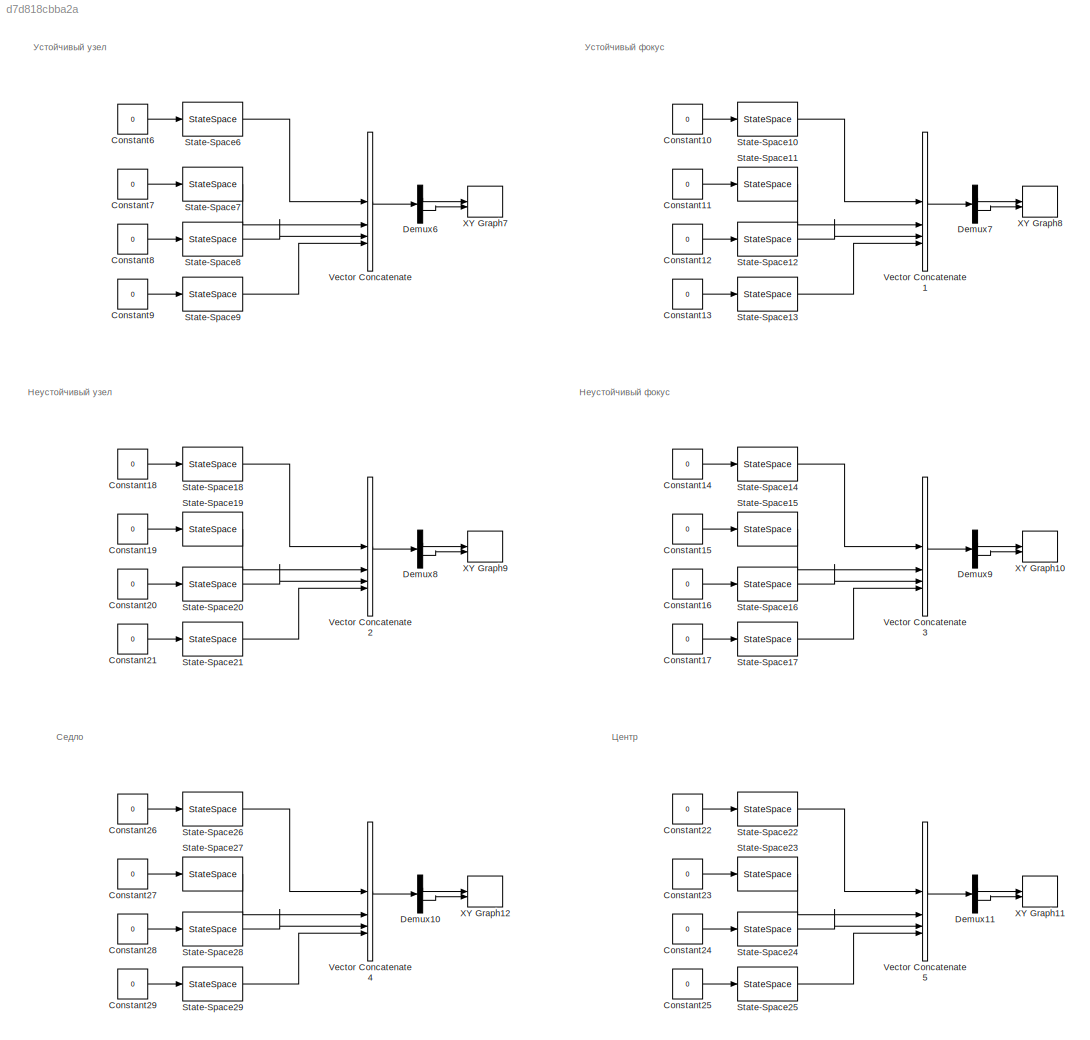
MODEL slx_d7d818cbba2a
KIND model
CONFIG AbsTol = auto
CONFIG EnableMultiTasking = off
CONFIG FixedStep = auto
CONFIG MaxStep = auto
CONFIG MinStep = auto
CONFIG RelTol = 1e-3
CONFIG SampleTimeConstraint = Unconstrained
CONFIG SolverName = VariableStepAuto
CONFIG StartTime = 0.0
CONFIG StopTime = 10.0
BLOCK [Constant] Constant10
  Value = 0
BLOCK [Constant] Constant11
  Value = 0
BLOCK [Constant] Constant12
  Value = 0
BLOCK [Constant] Constant13
  Value = 0
BLOCK [Constant] Constant14
  Value = 0
BLOCK [Constant] Constant15
  Value = 0
BLOCK [Constant] Constant16
  Value = 0
BLOCK [Constant] Constant17
  Value = 0
BLOCK [Constant] Constant18
  Value = 0
BLOCK [Constant] Constant19
  Value = 0
BLOCK [Constant] Constant20
  Value = 0
BLOCK [Constant] Constant21
  Value = 0
BLOCK [Constant] Constant22
  Value = 0
BLOCK [Constant] Constant23
  Value = 0
BLOCK [Constant] Constant24
  Value = 0
BLOCK [Constant] Constant25
  Value = 0
BLOCK [Constant] Constant26
  Value = 0
BLOCK [Constant] Constant27
  Value = 0
BLOCK [Constant] Constant28
  Value = 0
BLOCK [Constant] Constant29
  Value = 0
BLOCK [Constant] Constant6
  Value = 0
BLOCK [Constant] Constant7
  Value = 0
BLOCK [Constant] Constant8
  Value = 0
BLOCK [Constant] Constant9
  Value = 0
BLOCK [Demux] Demux10
  Outputs = 2
BLOCK [Demux] Demux11
  Outputs = 2
BLOCK [Demux] Demux6
  Outputs = 2
BLOCK [Demux] Demux7
  Outputs = 2
BLOCK [Demux] Demux8
  Outputs = 2
BLOCK [Demux] Demux9
  Outputs = 2
BLOCK [StateSpace] State-Space10
  A = [-1 -1; 2 -2]
  B = [0;0]
  C = [1 0; 0 1]
  D = [0;0]
  InitialCondition = [1;1]
BLOCK [StateSpace] State-Space11
  A = [-1 0; 0 -2]
  B = [0;0]
  C = [1 0; 0 1]
  D = [0;0]
  InitialCondition = [-1;1]
BLOCK [StateSpace] State-Space12
  A = [-1 0; 0 -2]
  B = [0;0]
  C = [1 0; 0 1]
  D = [0;0]
  InitialCondition = [3;-3]
BLOCK [StateSpace] State-Space13
  A = [-1 0; 0 -2]
  B = [0;0]
  C = [1 0; 0 1]
  D = [0;0]
  InitialCondition = [-1;-1]
BLOCK [StateSpace] State-Space14
  A = [1 -1; 2 2]
  B = [0;0]
  C = [1 0; 0 1]
  D = [0;0]
  InitialCondition = [1;1]
BLOCK [StateSpace] State-Space15
  A = [1 -1; 2 2]
  B = [0;0]
  C = [1 0; 0 1]
  D = [0;0]
  InitialCondition = [-1;1]
BLOCK [StateSpace] State-Space16
  A = [1 -1; 2 2]
  B = [0;0]
  C = [1 0; 0 1]
  D = [0;0]
  InitialCondition = [3;-3]
BLOCK [StateSpace] State-Space17
  A = [1 -1; 2 2]
  B = [0;0]
  C = [1 0; 0 1]
  D = [0;0]
  InitialCondition = [-1;-1]
BLOCK [StateSpace] State-Space18
  A = [1 0; 0 2]
  B = [0;0]
  C = [1 0; 0 1]
  D = [0;0]
  InitialCondition = [1;1]
BLOCK [StateSpace] State-Space19
  A = [1 0; 0 2]
  B = [0;0]
  C = [1 0; 0 1]
  D = [0;0]
  InitialCondition = [-1;1]
BLOCK [StateSpace] State-Space20
  A = [1 0; 0 2]
  B = [0;0]
  C = [1 0; 0 1]
  D = [0;0]
  InitialCondition = [0.5;-0.5]
BLOCK [StateSpace] State-Space21
  A = [1 0; 0 2]
  B = [0;0]
  C = [1 0; 0 1]
  D = [0;0]
  InitialCondition = [-1;-1]
BLOCK [StateSpace] State-Space22
  A = [0 -1; 1 0]
  B = [0;0]
  C = [1 0; 0 1]
  D = [0;0]
  InitialCondition = [1;1]
BLOCK [StateSpace] State-Space23
  A = [0 -1; 1 0]
  B = [0;0]
  C = [1 0; 0 1]
  D = [0;0]
  InitialCondition = [-1;1]
BLOCK [StateSpace] State-Space24
  A = [0 -1; 1 0]
  B = [0;0]
  C = [1 0; 0 1]
  D = [0;0]
  InitialCondition = [3;-3]
BLOCK [StateSpace] State-Space25
  A = [0 -1; 1 0]
  B = [0;0]
  C = [1 0; 0 1]
  D = [0;0]
  InitialCondition = [-1;-1]
BLOCK [StateSpace] State-Space26
  A = [1 0; 0 -2]
  B = [0;0]
  C = [1 0; 0 1]
  D = [0;0]
  InitialCondition = [1;1]
BLOCK [StateSpace] State-Space27
  A = [1 0; 0 -2]
  B = [0;0]
  C = [1 0; 0 1]
  D = [0;0]
  InitialCondition = [-1;1]
BLOCK [StateSpace] State-Space28
  A = [1 0; 0 -2]
  B = [0;0]
  C = [1 0; 0 1]
  D = [0;0]
  InitialCondition = [3;-3]
BLOCK [StateSpace] State-Space29
  A = [1 0; 0 -2]
  B = [0;0]
  C = [1 0; 0 1]
  D = [0;0]
  InitialCondition = [-1;-1]
BLOCK [StateSpace] State-Space6
  A = [-1 0; 0 -2]
  B = [0;0]
  C = [1 0; 0 1]
  D = [0;0]
  InitialCondition = [1;1]
BLOCK [StateSpace] State-Space7
  A = [-1 0; 0 -2]
  B = [0;0]
  C = [1 0; 0 1]
  D = [0;0]
  InitialCondition = [-1;1]
BLOCK [StateSpace] State-Space8
  A = [-1 0; 0 -2]
  B = [0;0]
  C = [1 0; 0 1]
  D = [0;0]
  InitialCondition = [3;-3]
BLOCK [StateSpace] State-Space9
  A = [-1 0; 0 -2]
  B = [0;0]
  C = [1 0; 0 1]
  D = [0;0]
  InitialCondition = [-1;-1]
BLOCK [Concatenate] Vector Concatenate
  NumInputs = 4
BLOCK [Concatenate] Vector Concatenate1
  NumInputs = 4
BLOCK [Concatenate] Vector Concatenate2
  NumInputs = 4
BLOCK [Concatenate] Vector Concatenate3
  NumInputs = 4
BLOCK [Concatenate] Vector Concatenate4
  NumInputs = 4
BLOCK [Concatenate] Vector Concatenate5
  NumInputs = 4
BLOCK [Record] XY Graph10
  CompatibilityTag = XY
  FileSettingsInternal = {"entries":[{"content":{"excelSettings":{"content":{},"type":"Streamout.ExcelSettings"}},"type":"Streamout.FileSettingStorage","uuid":""}],"packageUris":["http:\/\/schema.mathworks.com\/mf0\/streamout_blocks\/R2020a"],"version":"1.0"}  <repeated x6 — deduplicated; at blocks: XY Graph10, XY Graph11, XY Graph12, XY Graph7, XY Graph8, XY Graph9>
  Layout = [1 1]
  SignalsInternal = {"entries":[{"content":{},"type":"RecordBlkView.InputSignals","uuid":""}],"packageUris":["http:\/\/schema.mathworks.com\/mf0\/streamout_blocks\/R2020a"],"version":"1.0"}
  VisualizationBindings = {"xyplotplugin":{"info":[{"series":[{"bindingParametersList":[{"parameter":"X-Axis","signalID":2387,"signalName":"Demux9:1(1)"},{"parameter":"Y-Axis","signalID":2392,"signalName":"Demux9:2(1)"}],"seriesID":0},{"bindingParametersList":[{"parameter":"X-Axis","signalID":2442,"signalName":"Demux9:1(2)"},{"parameter":"Y-Axis","signalID":2445,"signalName":"Demux9:2(2)"}],"seriesID":1},{"bindingParameter...<+346ch>
BLOCK [Record] XY Graph11
  CompatibilityTag = XY
  Layout = [1 1]
  SignalsInternal = {"entries":[{"content":{},"type":"RecordBlkView.InputSignals","uuid":""}],"packageUris":["http:\/\/schema.mathworks.com\/mf0\/streamout_blocks\/R2020a"],"version":"1.0"}
  VisualizationBindings = {"xyplotplugin":{"info":[{"series":[{"bindingParametersList":[{"parameter":"X-Axis","signalID":2407,"signalName":"Demux11:1(1)"},{"parameter":"Y-Axis","signalID":2412,"signalName":"Demux11:2(1)"}],"seriesID":0},{"bindingParametersList":[{"parameter":"X-Axis","signalID":2454,"signalName":"Demux11:1(2)"},{"parameter":"Y-Axis","signalID":2457,"signalName":"Demux11:2(2)"}],"seriesID":1},{"bindingParam...<+354ch>
BLOCK [Record] XY Graph12
  CompatibilityTag = XY
  Layout = [1 1]
  SignalsInternal = {"entries":[{"content":{},"type":"RecordBlkView.InputSignals","uuid":""}],"packageUris":["http:\/\/schema.mathworks.com\/mf0\/streamout_blocks\/R2020a"],"version":"1.0"}
  VisualizationBindings = {"xyplotplugin":{"info":[{"series":[{"bindingParametersList":[{"parameter":"X-Axis","signalID":2417,"signalName":"Demux10:1(1)"},{"parameter":"Y-Axis","signalID":2422,"signalName":"Demux10:2(1)"}],"seriesID":0},{"bindingParametersList":[{"parameter":"X-Axis","signalID":2460,"signalName":"Demux10:1(2)"},{"parameter":"Y-Axis","signalID":2463,"signalName":"Demux10:2(2)"}],"seriesID":1},{"bindingParam...<+354ch>
BLOCK [Record] XY Graph7
  CompatibilityTag = XY
  Layout = [1 1]
  SignalsInternal = {"entries":[{"content":{},"type":"RecordBlkView.InputSignals","uuid":""}],"packageUris":["http:\/\/schema.mathworks.com\/mf0\/streamout_blocks\/R2020a"],"version":"1.0"}
  VisualizationBindings = {"xyplotplugin":{"info":[{"series":[{"bindingParametersList":[{"parameter":"X-Axis","signalID":2427,"signalName":"Demux6:1(1)"},{"parameter":"Y-Axis","signalID":2432,"signalName":"Demux6:2(1)"},{"parameter":"X-Axis","signalID":2427,"signalName":"Demux6:1(1)"},{"parameter":"Y-Axis","signalID":2432,"signalName":"Demux6:2(1)"},{"parameter":"X-Axis","signalID":2427,"signalName":"Demux6:1(1)"},{"parame...<+6814ch>
BLOCK [Record] XY Graph8
  CompatibilityTag = XY
  Layout = [1 1]
  SignalsInternal = {"entries":[{"content":{},"type":"RecordBlkView.InputSignals","uuid":""}],"packageUris":["http:\/\/schema.mathworks.com\/mf0\/streamout_blocks\/R2020a"],"version":"1.0"}
  VisualizationBindings = {"xyplotplugin":{"info":[{"series":[{"bindingParametersList":[{"parameter":"X-Axis","signalID":2377,"signalName":"Demux7:1(1)"},{"parameter":"Y-Axis","signalID":2382,"signalName":"Demux7:2(1)"}],"seriesID":0},{"bindingParametersList":[{"parameter":"X-Axis","signalID":2436,"signalName":"Demux7:1(2)"},{"parameter":"Y-Axis","signalID":2439,"signalName":"Demux7:2(2)"}],"seriesID":1},{"bindingParameter...<+346ch>
BLOCK [Record] XY Graph9
  CompatibilityTag = XY
  Layout = [1 1]
  SignalsInternal = {"entries":[{"content":{"signals":[{"content":{"blockPath":[],"dimensions":[4],"domain":"","hasChildren":true,"lineColor":"#a2142f","lineWidth":2,"port":1,"sid":[""],"signalID":1,"signalName":"Demux7:1"},"type":"RecordBlkView.Signal","uuid":""},{"content":{"blockPath":[],"channel":[1],"dimensions":[4],"domain":"","lineColor":"#7e2f8e","lineWidth":2,"parentID":1,"port":1,"sid":[""],"signalID":2,"si...<+12975ch>
  VisualizationBindings = {"xyplotplugin":{"info":[{"series":[{"bindingParametersList":[{"parameter":"X-Axis","signalID":10,"signalName":"Demux8:1(1)"},{"parameter":"Y-Axis","signalID":12,"signalName":"Demux8:2(1)"}],"seriesID":0},{"bindingParametersList":[{"parameter":"X-Axis","signalID":37,"signalName":"Demux8:1(2)"},{"parameter":"Y-Axis","signalID":40,"signalName":"Demux8:2(2)"}],"seriesID":1},{"bindingParametersList":[...<+330ch>
ANNOTATION (root): Неустойчивый узел
ANNOTATION (root): Неустойчивый фокус
ANNOTATION (root): Седло
ANNOTATION (root): Устойчивый узел
ANNOTATION (root): Устойчивый фокус
ANNOTATION (root): Центр
LINE Constant10:1 -> State-Space10:1
LINE Constant11:1 -> State-Space11:1
LINE Constant12:1 -> State-Space12:1
LINE Constant13:1 -> State-Space13:1
LINE Constant14:1 -> State-Space14:1
LINE Constant15:1 -> State-Space15:1
LINE Constant16:1 -> State-Space16:1
LINE Constant17:1 -> State-Space17:1
LINE Constant18:1 -> State-Space18:1
LINE Constant19:1 -> State-Space19:1
LINE Constant20:1 -> State-Space20:1
LINE Constant21:1 -> State-Space21:1
LINE Constant22:1 -> State-Space22:1
LINE Constant23:1 -> State-Space23:1
LINE Constant24:1 -> State-Space24:1
LINE Constant25:1 -> State-Space25:1
LINE Constant26:1 -> State-Space26:1
LINE Constant27:1 -> State-Space27:1
LINE Constant28:1 -> State-Space28:1
LINE Constant29:1 -> State-Space29:1
LINE Constant6:1 -> State-Space6:1
LINE Constant7:1 -> State-Space7:1
LINE Constant8:1 -> State-Space8:1
LINE Constant9:1 -> State-Space9:1
LINE Demux10:1 -> XY Graph12:1
LINE Demux10:2 -> XY Graph12:2
LINE Demux11:1 -> XY Graph11:1
LINE Demux11:2 -> XY Graph11:2
LINE Demux6:1 -> XY Graph7:1
LINE Demux6:2 -> XY Graph7:2
LINE Demux7:1 -> XY Graph8:1
LINE Demux7:2 -> XY Graph8:2
LINE Demux8:1 -> XY Graph9:1
LINE Demux8:2 -> XY Graph9:2
LINE Demux9:1 -> XY Graph10:1
LINE Demux9:2 -> XY Graph10:2
LINE State-Space10:1 -> Vector Concatenate1:1
LINE State-Space11:1 -> Vector Concatenate1:2
LINE State-Space12:1 -> Vector Concatenate1:3
LINE State-Space13:1 -> Vector Concatenate1:4
LINE State-Space14:1 -> Vector Concatenate3:1
LINE State-Space15:1 -> Vector Concatenate3:2
LINE State-Space16:1 -> Vector Concatenate3:3
LINE State-Space17:1 -> Vector Concatenate3:4
LINE State-Space18:1 -> Vector Concatenate2:1
LINE State-Space19:1 -> Vector Concatenate2:2
LINE State-Space20:1 -> Vector Concatenate2:3
LINE State-Space21:1 -> Vector Concatenate2:4
LINE State-Space22:1 -> Vector Concatenate5:1
LINE State-Space23:1 -> Vector Concatenate5:2
LINE State-Space24:1 -> Vector Concatenate5:3
LINE State-Space25:1 -> Vector Concatenate5:4
LINE State-Space26:1 -> Vector Concatenate4:1
LINE State-Space27:1 -> Vector Concatenate4:2
LINE State-Space28:1 -> Vector Concatenate4:3
LINE State-Space29:1 -> Vector Concatenate4:4
LINE State-Space6:1 -> Vector Concatenate:1
LINE State-Space7:1 -> Vector Concatenate:2
LINE State-Space8:1 -> Vector Concatenate:3
LINE State-Space9:1 -> Vector Concatenate:4
LINE Vector Concatenate1:1 -> Demux7:1
LINE Vector Concatenate2:1 -> Demux8:1
LINE Vector Concatenate3:1 -> Demux9:1
LINE Vector Concatenate4:1 -> Demux10:1
LINE Vector Concatenate5:1 -> Demux11:1
LINE Vector Concatenate:1 -> Demux6:1
